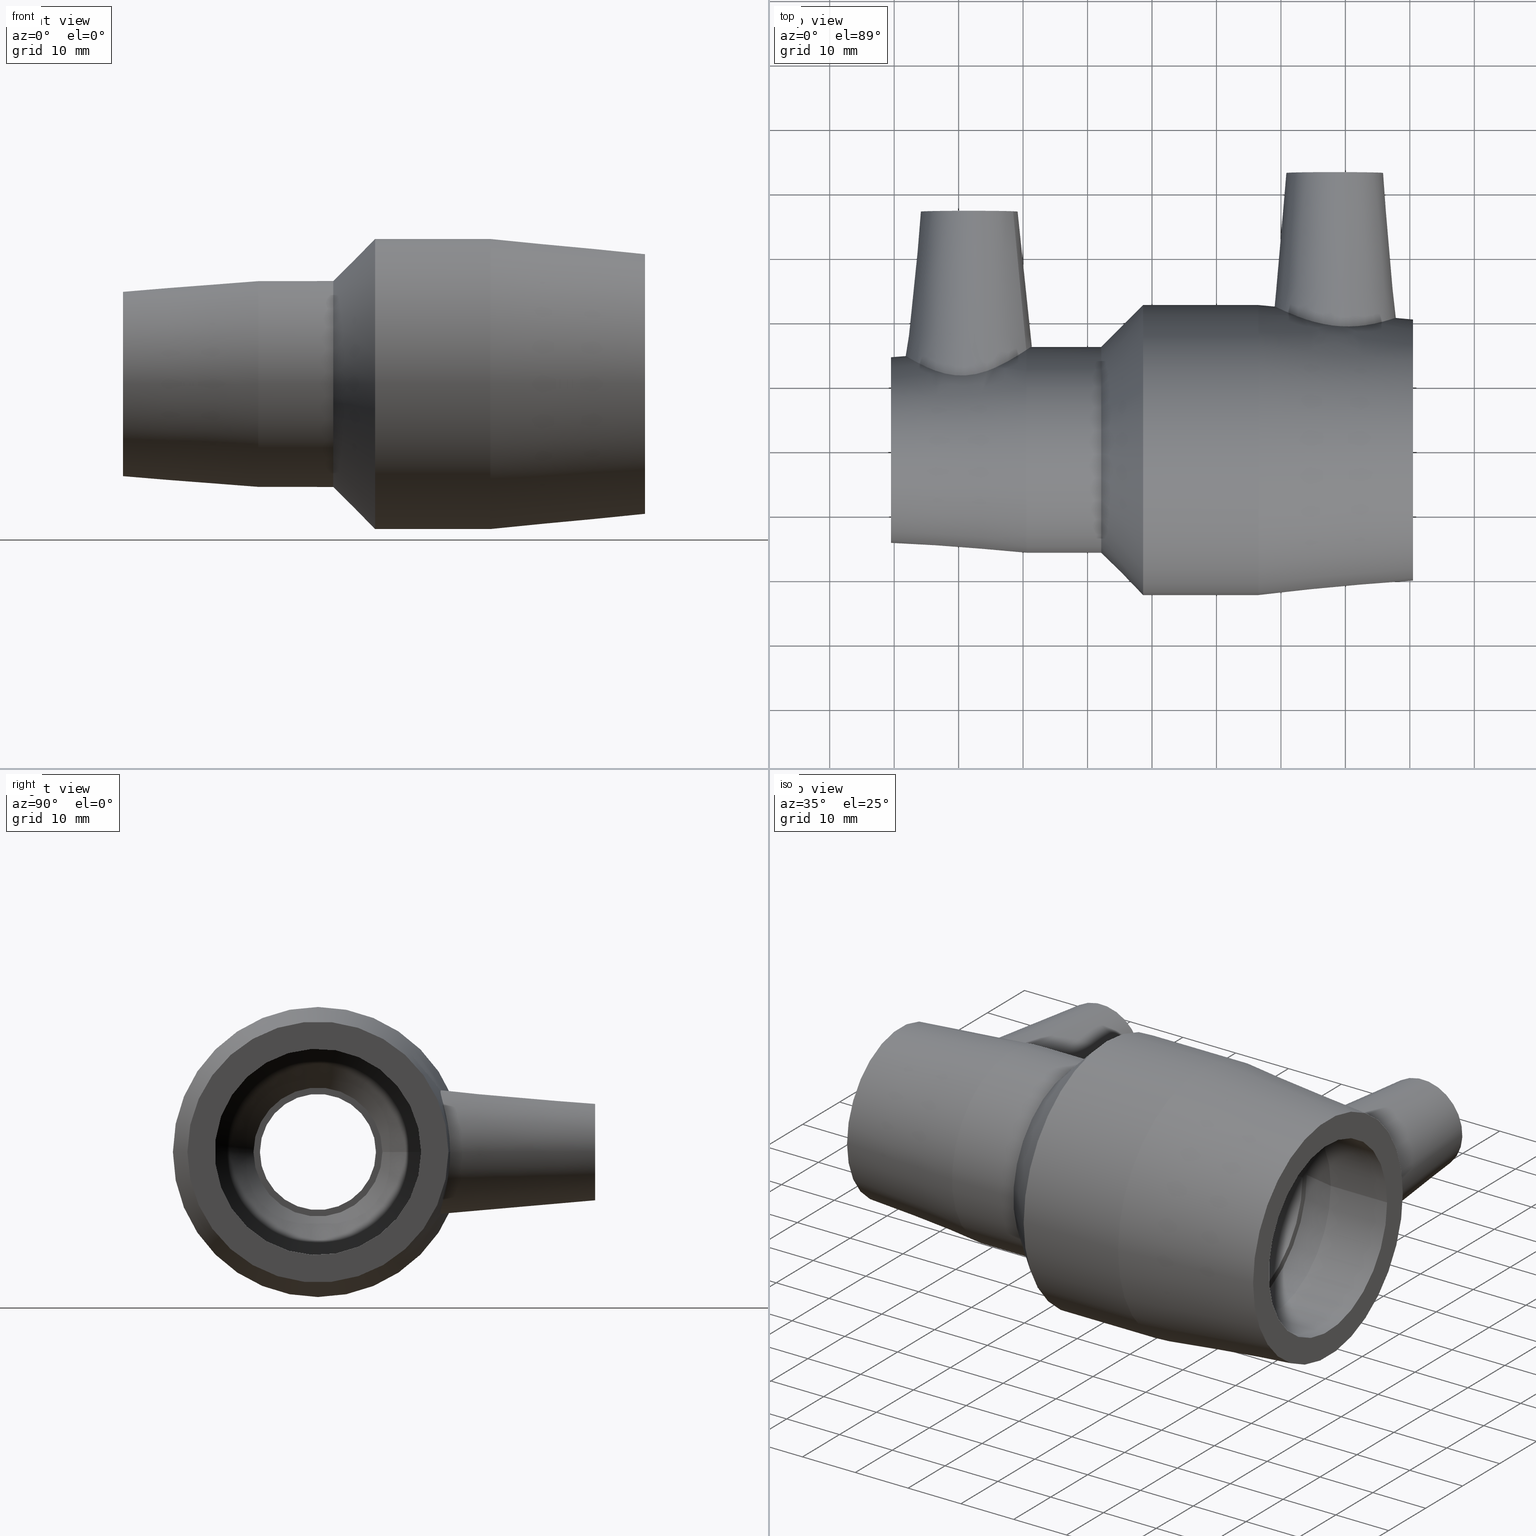
[diagram: canonical four-view strip — front | top / right | iso, engineering-drawing reading convention]
A machine part, canonical four-view strip (front | top / right | iso — engineering-drawing reading convention). The complete STEP part file that produces these views, byte-faithful:
ISO-10303-21;
HEADER;
/* Generated by software containing ST-Developer
 * from STEP Tools, Inc. (www.steptools.com) 
 */

FILE_DESCRIPTION(
/* description */ ('PLASSON REDUCING COUPLER 32-20'),
/* implementation_level */ '2;1');

FILE_NAME(
/* name */ 
'C:\\Dropbox\\KIMPROJECTS-Inventor\\99-16-3568-Processing\\ElectroFusi
on Fittings\\491104\\491104032020.ipt.stp',
/* time_stamp */ '2017-11-06T09:12:27+02:00',
/* author */ ('KIM'),
/* organization */ (''),
/* preprocessor_version */ 'ST-DEVELOPER v15.6',
/* originating_system */ 'Autodesk Inventor 2015',
/* authorisation */ '');

FILE_SCHEMA (('AUTOMOTIVE_DESIGN { 1 0 10303 214 3 1 1 }'));
ENDSEC;

DATA;
#10=MECHANICAL_DESIGN_GEOMETRIC_PRESENTATION_REPRESENTATION('',(#13),#743);
#11=SHAPE_REPRESENTATION_RELATIONSHIP('SRR','None',#752,#12);
#12=ADVANCED_BREP_SHAPE_REPRESENTATION($,(#14),#742);
#13=STYLED_ITEM('',(#761),#14);
#14=MANIFOLD_SOLID_BREP('Solid1',#371);
#15=B_SPLINE_CURVE_WITH_KNOTS('',3,(#582,#583,#584,#585,#586,#587,#588,
#589,#590,#591,#592,#593,#594,#595,#596,#597,#598,#599,#600,#601,#602,#603,
#604,#605,#606,#607,#608,#609,#610,#611,#612,#613,#614,#615),
 .UNSPECIFIED.,.T.,.F.,(4,2,2,2,2,2,2,2,2,2,2,2,2,2,2,2,4),(0.,0.34921942886864,
0.69843885773728,1.05091588637607,1.40339291501485,1.75586994365364,2.10834697229243,
2.45756640116107,2.80678583002971,3.18980122872234,3.57281662741497,3.9445500905456,
4.31628355367624,4.68801701680687,5.0597504799375,5.44276587863013,5.82578127732276),
 .UNSPECIFIED.);
#16=B_SPLINE_CURVE_WITH_KNOTS('',3,(#631,#632,#633,#634,#635,#636,#637,
#638,#639,#640),.UNSPECIFIED.,.F.,.F.,(4,2,2,2,4),(-1.22343570303803,-0.843723200450169,
-0.421861600225085,-0.210930800112543,0.),.UNSPECIFIED.);
#17=B_SPLINE_CURVE_WITH_KNOTS('',3,(#642,#643,#644,#645,#646,#647,#648,
#649,#650,#651),.UNSPECIFIED.,.F.,.F.,(4,2,2,2,4),(1.22343570308442,1.24116246177338,
1.6386017230966,2.03604098441981,2.05376774310879),.UNSPECIFIED.);
#18=B_SPLINE_CURVE_WITH_KNOTS('',3,(#652,#653,#654,#655,#656,#657,#658,
#659,#660,#661,#662,#663,#664,#665,#666,#667,#668,#669,#670,#671,#672,#673,
#674,#675,#676,#677,#678,#679,#680,#681),.UNSPECIFIED.,.F.,.F.,(4,2,2,2,
2,2,2,2,2,2,2,2,2,2,4),(0.,0.188159917955633,0.376319835911266,0.752639671822533,
1.12794190605186,1.50324414028119,1.87854637451053,2.25384860873986,2.63016844465112,
2.81832836260676,3.00648828056239,3.21741908067493,3.42834988078747,3.85021148101256,
4.22992398364678),.UNSPECIFIED.);
#19=CONICAL_SURFACE('',#385,7.5,5.);
#20=CONICAL_SURFACE('',#394,7.5,6.);
#21=CONICAL_SURFACE('',#395,49.6882914393351,4.35697500584629);
#22=CONICAL_SURFACE('',#400,19.25,45.);
#23=CONICAL_SURFACE('',#404,21.375,5.35582504285521);
#24=CONICAL_SURFACE('',#410,16.5668174977867,12.);
#25=CONICAL_SURFACE('',#416,13.,54.688786560367);
#26=CONICAL_SURFACE('',#428,10.4959653105634,12.);
#27=CONICAL_SURFACE('',#434,15.2,4.35697500584628);
#28=FACE_BOUND('',#104,.T.);
#29=FACE_BOUND('',#106,.T.);
#30=FACE_BOUND('',#108,.T.);
#31=FACE_BOUND('',#110,.T.);
#32=FACE_BOUND('',#112,.T.);
#33=FACE_BOUND('',#114,.T.);
#34=FACE_BOUND('',#116,.T.);
#35=FACE_BOUND('',#118,.T.);
#36=FACE_BOUND('',#120,.T.);
#37=FACE_BOUND('',#122,.T.);
#38=FACE_BOUND('',#125,.T.);
#39=FACE_BOUND('',#127,.T.);
#40=FACE_BOUND('',#129,.T.);
#41=FACE_BOUND('',#131,.T.);
#42=FACE_BOUND('',#132,.T.);
#43=FACE_BOUND('',#134,.T.);
#44=FACE_BOUND('',#136,.T.);
#45=FACE_BOUND('',#138,.T.);
#46=FACE_BOUND('',#140,.T.);
#47=FACE_BOUND('',#142,.T.);
#48=FACE_BOUND('',#144,.T.);
#49=FACE_BOUND('',#146,.T.);
#50=FACE_BOUND('',#148,.T.);
#51=FACE_BOUND('',#150,.T.);
#52=FACE_BOUND('',#152,.T.);
#53=FACE_BOUND('',#154,.T.);
#54=FACE_BOUND('',#156,.T.);
#55=FACE_BOUND('',#158,.T.);
#56=FACE_BOUND('',#160,.T.);
#57=FACE_BOUND('',#162,.T.);
#58=CYLINDRICAL_SURFACE('',#377,2.);
#59=CYLINDRICAL_SURFACE('',#379,5.);
#60=CYLINDRICAL_SURFACE('',#386,2.);
#61=CYLINDRICAL_SURFACE('',#388,5.);
#62=CYLINDRICAL_SURFACE('',#397,16.);
#63=CYLINDRICAL_SURFACE('',#402,22.5);
#64=CYLINDRICAL_SURFACE('',#408,16.);
#65=CYLINDRICAL_SURFACE('',#414,16.);
#66=CYLINDRICAL_SURFACE('',#420,8.99999999999999);
#67=CYLINDRICAL_SURFACE('',#424,10.);
#68=CYLINDRICAL_SURFACE('',#430,10.);
#69=FACE_OUTER_BOUND('',#101,.T.);
#70=FACE_OUTER_BOUND('',#102,.T.);
#71=FACE_OUTER_BOUND('',#103,.T.);
#72=FACE_OUTER_BOUND('',#105,.T.);
#73=FACE_OUTER_BOUND('',#107,.T.);
#74=FACE_OUTER_BOUND('',#109,.T.);
#75=FACE_OUTER_BOUND('',#111,.T.);
#76=FACE_OUTER_BOUND('',#113,.T.);
#77=FACE_OUTER_BOUND('',#115,.T.);
#78=FACE_OUTER_BOUND('',#117,.T.);
#79=FACE_OUTER_BOUND('',#119,.T.);
#80=FACE_OUTER_BOUND('',#121,.T.);
#81=FACE_OUTER_BOUND('',#123,.T.);
#82=FACE_OUTER_BOUND('',#124,.T.);
#83=FACE_OUTER_BOUND('',#126,.T.);
#84=FACE_OUTER_BOUND('',#128,.T.);
#85=FACE_OUTER_BOUND('',#130,.T.);
#86=FACE_OUTER_BOUND('',#133,.T.);
#87=FACE_OUTER_BOUND('',#135,.T.);
#88=FACE_OUTER_BOUND('',#137,.T.);
#89=FACE_OUTER_BOUND('',#139,.T.);
#90=FACE_OUTER_BOUND('',#141,.T.);
#91=FACE_OUTER_BOUND('',#143,.T.);
#92=FACE_OUTER_BOUND('',#145,.T.);
#93=FACE_OUTER_BOUND('',#147,.T.);
#94=FACE_OUTER_BOUND('',#149,.T.);
#95=FACE_OUTER_BOUND('',#151,.T.);
#96=FACE_OUTER_BOUND('',#153,.T.);
#97=FACE_OUTER_BOUND('',#155,.T.);
#98=FACE_OUTER_BOUND('',#157,.T.);
#99=FACE_OUTER_BOUND('',#159,.T.);
#100=FACE_OUTER_BOUND('',#161,.T.);
#101=EDGE_LOOP('',(#259));
#102=EDGE_LOOP('',(#260));
#103=EDGE_LOOP('',(#261));
#104=EDGE_LOOP('',(#262));
#105=EDGE_LOOP('',(#263));
#106=EDGE_LOOP('',(#264));
#107=EDGE_LOOP('',(#265));
#108=EDGE_LOOP('',(#266));
#109=EDGE_LOOP('',(#267));
#110=EDGE_LOOP('',(#268));
#111=EDGE_LOOP('',(#269));
#112=EDGE_LOOP('',(#270));
#113=EDGE_LOOP('',(#271));
#114=EDGE_LOOP('',(#272));
#115=EDGE_LOOP('',(#273));
#116=EDGE_LOOP('',(#274));
#117=EDGE_LOOP('',(#275));
#118=EDGE_LOOP('',(#276));
#119=EDGE_LOOP('',(#277));
#120=EDGE_LOOP('',(#278));
#121=EDGE_LOOP('',(#279));
#122=EDGE_LOOP('',(#280,#281,#282));
#123=EDGE_LOOP('',(#283,#284));
#124=EDGE_LOOP('',(#285));
#125=EDGE_LOOP('',(#286,#287));
#126=EDGE_LOOP('',(#288));
#127=EDGE_LOOP('',(#289));
#128=EDGE_LOOP('',(#290));
#129=EDGE_LOOP('',(#291));
#130=EDGE_LOOP('',(#292));
#131=EDGE_LOOP('',(#293));
#132=EDGE_LOOP('',(#294));
#133=EDGE_LOOP('',(#295));
#134=EDGE_LOOP('',(#296));
#135=EDGE_LOOP('',(#297));
#136=EDGE_LOOP('',(#298));
#137=EDGE_LOOP('',(#299));
#138=EDGE_LOOP('',(#300));
#139=EDGE_LOOP('',(#301));
#140=EDGE_LOOP('',(#302));
#141=EDGE_LOOP('',(#303));
#142=EDGE_LOOP('',(#304));
#143=EDGE_LOOP('',(#305));
#144=EDGE_LOOP('',(#306));
#145=EDGE_LOOP('',(#307));
#146=EDGE_LOOP('',(#308));
#147=EDGE_LOOP('',(#309));
#148=EDGE_LOOP('',(#310));
#149=EDGE_LOOP('',(#311));
#150=EDGE_LOOP('',(#312));
#151=EDGE_LOOP('',(#313));
#152=EDGE_LOOP('',(#314));
#153=EDGE_LOOP('',(#315));
#154=EDGE_LOOP('',(#316));
#155=EDGE_LOOP('',(#317));
#156=EDGE_LOOP('',(#318));
#157=EDGE_LOOP('',(#319));
#158=EDGE_LOOP('',(#320));
#159=EDGE_LOOP('',(#321));
#160=EDGE_LOOP('',(#322));
#161=EDGE_LOOP('',(#323,#324,#325));
#162=EDGE_LOOP('',(#326));
#163=CIRCLE('',#374,2.);
#164=CIRCLE('',#376,2.);
#165=CIRCLE('',#378,2.);
#166=CIRCLE('',#380,5.);
#167=CIRCLE('',#381,5.);
#168=CIRCLE('',#384,7.5);
#169=CIRCLE('',#387,2.);
#170=CIRCLE('',#389,5.);
#171=CIRCLE('',#390,5.);
#172=CIRCLE('',#393,7.5);
#173=CIRCLE('',#396,16.);
#174=CIRCLE('',#398,16.);
#175=CIRCLE('',#399,16.);
#176=CIRCLE('',#401,22.5);
#177=CIRCLE('',#403,22.5);
#178=CIRCLE('',#405,20.25);
#179=CIRCLE('',#407,16.);
#180=CIRCLE('',#409,16.);
#181=CIRCLE('',#411,17.1336349955734);
#182=CIRCLE('',#413,16.);
#183=CIRCLE('',#415,16.);
#184=CIRCLE('',#417,9.99999999999999);
#185=CIRCLE('',#419,8.99999999999999);
#186=CIRCLE('',#421,8.99999999999999);
#187=CIRCLE('',#423,9.99999999999999);
#188=CIRCLE('',#425,10.);
#189=CIRCLE('',#427,10.9919306211268);
#190=CIRCLE('',#429,10.);
#191=CIRCLE('',#431,10.);
#192=CIRCLE('',#433,14.4);
#193=VERTEX_POINT('',#563);
#194=VERTEX_POINT('',#566);
#195=VERTEX_POINT('',#569);
#196=VERTEX_POINT('',#572);
#197=VERTEX_POINT('',#574);
#198=VERTEX_POINT('',#578);
#199=VERTEX_POINT('',#581);
#200=VERTEX_POINT('',#617);
#201=VERTEX_POINT('',#620);
#202=VERTEX_POINT('',#622);
#203=VERTEX_POINT('',#626);
#204=VERTEX_POINT('',#629);
#205=VERTEX_POINT('',#630);
#206=VERTEX_POINT('',#641);
#207=VERTEX_POINT('',#685);
#208=VERTEX_POINT('',#689);
#209=VERTEX_POINT('',#692);
#210=VERTEX_POINT('',#695);
#211=VERTEX_POINT('',#698);
#212=VERTEX_POINT('',#701);
#213=VERTEX_POINT('',#704);
#214=VERTEX_POINT('',#707);
#215=VERTEX_POINT('',#710);
#216=VERTEX_POINT('',#713);
#217=VERTEX_POINT('',#716);
#218=VERTEX_POINT('',#719);
#219=VERTEX_POINT('',#722);
#220=VERTEX_POINT('',#725);
#221=VERTEX_POINT('',#728);
#222=VERTEX_POINT('',#731);
#223=VERTEX_POINT('',#734);
#224=VERTEX_POINT('',#737);
#225=EDGE_CURVE('',#193,#193,#163,.T.);
#226=EDGE_CURVE('',#194,#194,#164,.T.);
#227=EDGE_CURVE('',#195,#195,#165,.T.);
#228=EDGE_CURVE('',#196,#196,#166,.T.);
#229=EDGE_CURVE('',#197,#197,#167,.T.);
#230=EDGE_CURVE('',#198,#198,#168,.T.);
#231=EDGE_CURVE('',#199,#199,#15,.T.);
#232=EDGE_CURVE('',#200,#200,#169,.T.);
#233=EDGE_CURVE('',#201,#201,#170,.T.);
#234=EDGE_CURVE('',#202,#202,#171,.T.);
#235=EDGE_CURVE('',#203,#203,#172,.T.);
#236=EDGE_CURVE('',#204,#205,#16,.T.);
#237=EDGE_CURVE('',#204,#206,#17,.T.);
#238=EDGE_CURVE('',#205,#206,#18,.T.);
#239=EDGE_CURVE('',#206,#204,#173,.T.);
#240=EDGE_CURVE('',#207,#207,#174,.T.);
#241=EDGE_CURVE('',#204,#206,#175,.T.);
#242=EDGE_CURVE('',#208,#208,#176,.T.);
#243=EDGE_CURVE('',#209,#209,#177,.T.);
#244=EDGE_CURVE('',#210,#210,#178,.T.);
#245=EDGE_CURVE('',#211,#211,#179,.T.);
#246=EDGE_CURVE('',#212,#212,#180,.T.);
#247=EDGE_CURVE('',#213,#213,#181,.T.);
#248=EDGE_CURVE('',#214,#214,#182,.T.);
#249=EDGE_CURVE('',#215,#215,#183,.T.);
#250=EDGE_CURVE('',#216,#216,#184,.T.);
#251=EDGE_CURVE('',#217,#217,#185,.T.);
#252=EDGE_CURVE('',#218,#218,#186,.T.);
#253=EDGE_CURVE('',#219,#219,#187,.T.);
#254=EDGE_CURVE('',#220,#220,#188,.T.);
#255=EDGE_CURVE('',#221,#221,#189,.T.);
#256=EDGE_CURVE('',#222,#222,#190,.T.);
#257=EDGE_CURVE('',#223,#223,#191,.T.);
#258=EDGE_CURVE('',#224,#224,#192,.T.);
#259=ORIENTED_EDGE('',*,*,#225,.F.);
#260=ORIENTED_EDGE('',*,*,#226,.F.);
#261=ORIENTED_EDGE('',*,*,#225,.T.);
#262=ORIENTED_EDGE('',*,*,#227,.T.);
#263=ORIENTED_EDGE('',*,*,#228,.T.);
#264=ORIENTED_EDGE('',*,*,#229,.F.);
#265=ORIENTED_EDGE('',*,*,#228,.F.);
#266=ORIENTED_EDGE('',*,*,#227,.F.);
#267=ORIENTED_EDGE('',*,*,#230,.F.);
#268=ORIENTED_EDGE('',*,*,#229,.T.);
#269=ORIENTED_EDGE('',*,*,#230,.T.);
#270=ORIENTED_EDGE('',*,*,#231,.F.);
#271=ORIENTED_EDGE('',*,*,#226,.T.);
#272=ORIENTED_EDGE('',*,*,#232,.T.);
#273=ORIENTED_EDGE('',*,*,#233,.T.);
#274=ORIENTED_EDGE('',*,*,#234,.F.);
#275=ORIENTED_EDGE('',*,*,#233,.F.);
#276=ORIENTED_EDGE('',*,*,#232,.F.);
#277=ORIENTED_EDGE('',*,*,#235,.F.);
#278=ORIENTED_EDGE('',*,*,#234,.T.);
#279=ORIENTED_EDGE('',*,*,#235,.T.);
#280=ORIENTED_EDGE('',*,*,#236,.F.);
#281=ORIENTED_EDGE('',*,*,#237,.T.);
#282=ORIENTED_EDGE('',*,*,#238,.F.);
#283=ORIENTED_EDGE('',*,*,#239,.F.);
#284=ORIENTED_EDGE('',*,*,#237,.F.);
#285=ORIENTED_EDGE('',*,*,#240,.F.);
#286=ORIENTED_EDGE('',*,*,#239,.T.);
#287=ORIENTED_EDGE('',*,*,#241,.T.);
#288=ORIENTED_EDGE('',*,*,#242,.F.);
#289=ORIENTED_EDGE('',*,*,#240,.T.);
#290=ORIENTED_EDGE('',*,*,#243,.F.);
#291=ORIENTED_EDGE('',*,*,#242,.T.);
#292=ORIENTED_EDGE('',*,*,#244,.F.);
#293=ORIENTED_EDGE('',*,*,#231,.T.);
#294=ORIENTED_EDGE('',*,*,#243,.T.);
#295=ORIENTED_EDGE('',*,*,#244,.T.);
#296=ORIENTED_EDGE('',*,*,#245,.F.);
#297=ORIENTED_EDGE('',*,*,#246,.F.);
#298=ORIENTED_EDGE('',*,*,#245,.T.);
#299=ORIENTED_EDGE('',*,*,#247,.F.);
#300=ORIENTED_EDGE('',*,*,#246,.T.);
#301=ORIENTED_EDGE('',*,*,#247,.T.);
#302=ORIENTED_EDGE('',*,*,#248,.F.);
#303=ORIENTED_EDGE('',*,*,#249,.F.);
#304=ORIENTED_EDGE('',*,*,#248,.T.);
#305=ORIENTED_EDGE('',*,*,#250,.F.);
#306=ORIENTED_EDGE('',*,*,#249,.T.);
#307=ORIENTED_EDGE('',*,*,#250,.T.);
#308=ORIENTED_EDGE('',*,*,#251,.F.);
#309=ORIENTED_EDGE('',*,*,#252,.F.);
#310=ORIENTED_EDGE('',*,*,#251,.T.);
#311=ORIENTED_EDGE('',*,*,#253,.F.);
#312=ORIENTED_EDGE('',*,*,#252,.T.);
#313=ORIENTED_EDGE('',*,*,#254,.F.);
#314=ORIENTED_EDGE('',*,*,#253,.T.);
#315=ORIENTED_EDGE('',*,*,#255,.F.);
#316=ORIENTED_EDGE('',*,*,#254,.T.);
#317=ORIENTED_EDGE('',*,*,#256,.F.);
#318=ORIENTED_EDGE('',*,*,#255,.T.);
#319=ORIENTED_EDGE('',*,*,#257,.F.);
#320=ORIENTED_EDGE('',*,*,#256,.T.);
#321=ORIENTED_EDGE('',*,*,#258,.F.);
#322=ORIENTED_EDGE('',*,*,#257,.T.);
#323=ORIENTED_EDGE('',*,*,#238,.T.);
#324=ORIENTED_EDGE('',*,*,#241,.F.);
#325=ORIENTED_EDGE('',*,*,#236,.T.);
#326=ORIENTED_EDGE('',*,*,#258,.T.);
#327=PLANE('',#373);
#328=PLANE('',#375);
#329=PLANE('',#382);
#330=PLANE('',#383);
#331=PLANE('',#391);
#332=PLANE('',#392);
#333=PLANE('',#406);
#334=PLANE('',#412);
#335=PLANE('',#418);
#336=PLANE('',#422);
#337=PLANE('',#426);
#338=PLANE('',#432);
#339=ADVANCED_FACE('',(#69),#327,.T.);
#340=ADVANCED_FACE('',(#70),#328,.T.);
#341=ADVANCED_FACE('',(#71,#28),#58,.T.);
#342=ADVANCED_FACE('',(#72,#29),#59,.F.);
#343=ADVANCED_FACE('',(#73,#30),#329,.T.);
#344=ADVANCED_FACE('',(#74,#31),#330,.T.);
#345=ADVANCED_FACE('',(#75,#32),#19,.T.);
#346=ADVANCED_FACE('',(#76,#33),#60,.T.);
#347=ADVANCED_FACE('',(#77,#34),#61,.F.);
#348=ADVANCED_FACE('',(#78,#35),#331,.T.);
#349=ADVANCED_FACE('',(#79,#36),#332,.T.);
#350=ADVANCED_FACE('',(#80,#37),#20,.T.);
#351=ADVANCED_FACE('',(#81),#21,.F.);
#352=ADVANCED_FACE('',(#82,#38),#62,.T.);
#353=ADVANCED_FACE('',(#83,#39),#22,.T.);
#354=ADVANCED_FACE('',(#84,#40),#63,.T.);
#355=ADVANCED_FACE('',(#85,#41,#42),#23,.T.);
#356=ADVANCED_FACE('',(#86,#43),#333,.T.);
#357=ADVANCED_FACE('',(#87,#44),#64,.F.);
#358=ADVANCED_FACE('',(#88,#45),#24,.F.);
#359=ADVANCED_FACE('',(#89,#46),#334,.T.);
#360=ADVANCED_FACE('',(#90,#47),#65,.F.);
#361=ADVANCED_FACE('',(#91,#48),#25,.F.);
#362=ADVANCED_FACE('',(#92,#49),#335,.T.);
#363=ADVANCED_FACE('',(#93,#50),#66,.F.);
#364=ADVANCED_FACE('',(#94,#51),#336,.T.);
#365=ADVANCED_FACE('',(#95,#52),#67,.F.);
#366=ADVANCED_FACE('',(#96,#53),#337,.T.);
#367=ADVANCED_FACE('',(#97,#54),#26,.F.);
#368=ADVANCED_FACE('',(#98,#55),#68,.F.);
#369=ADVANCED_FACE('',(#99,#56),#338,.T.);
#370=ADVANCED_FACE('',(#100,#57),#27,.T.);
#371=CLOSED_SHELL('',(#339,#340,#341,#342,#343,#344,#345,#346,#347,#348,
#349,#350,#351,#352,#353,#354,#355,#356,#357,#358,#359,#360,#361,#362,#363,
#364,#365,#366,#367,#368,#369,#370));
#372=AXIS2_PLACEMENT_3D('placement',#561,#435,#436);
#373=AXIS2_PLACEMENT_3D('',#562,#437,#438);
#374=AXIS2_PLACEMENT_3D('',#564,#439,#440);
#375=AXIS2_PLACEMENT_3D('',#565,#441,#442);
#376=AXIS2_PLACEMENT_3D('',#567,#443,#444);
#377=AXIS2_PLACEMENT_3D('',#568,#445,#446);
#378=AXIS2_PLACEMENT_3D('',#570,#447,#448);
#379=AXIS2_PLACEMENT_3D('',#571,#449,#450);
#380=AXIS2_PLACEMENT_3D('',#573,#451,#452);
#381=AXIS2_PLACEMENT_3D('',#575,#453,#454);
#382=AXIS2_PLACEMENT_3D('',#576,#455,#456);
#383=AXIS2_PLACEMENT_3D('',#577,#457,#458);
#384=AXIS2_PLACEMENT_3D('',#579,#459,#460);
#385=AXIS2_PLACEMENT_3D('',#580,#461,#462);
#386=AXIS2_PLACEMENT_3D('',#616,#463,#464);
#387=AXIS2_PLACEMENT_3D('',#618,#465,#466);
#388=AXIS2_PLACEMENT_3D('',#619,#467,#468);
#389=AXIS2_PLACEMENT_3D('',#621,#469,#470);
#390=AXIS2_PLACEMENT_3D('',#623,#471,#472);
#391=AXIS2_PLACEMENT_3D('',#624,#473,#474);
#392=AXIS2_PLACEMENT_3D('',#625,#475,#476);
#393=AXIS2_PLACEMENT_3D('',#627,#477,#478);
#394=AXIS2_PLACEMENT_3D('',#628,#479,#480);
#395=AXIS2_PLACEMENT_3D('',#682,#481,#482);
#396=AXIS2_PLACEMENT_3D('',#683,#483,#484);
#397=AXIS2_PLACEMENT_3D('',#684,#485,#486);
#398=AXIS2_PLACEMENT_3D('',#686,#487,#488);
#399=AXIS2_PLACEMENT_3D('',#687,#489,#490);
#400=AXIS2_PLACEMENT_3D('',#688,#491,#492);
#401=AXIS2_PLACEMENT_3D('',#690,#493,#494);
#402=AXIS2_PLACEMENT_3D('',#691,#495,#496);
#403=AXIS2_PLACEMENT_3D('',#693,#497,#498);
#404=AXIS2_PLACEMENT_3D('',#694,#499,#500);
#405=AXIS2_PLACEMENT_3D('',#696,#501,#502);
#406=AXIS2_PLACEMENT_3D('',#697,#503,#504);
#407=AXIS2_PLACEMENT_3D('',#699,#505,#506);
#408=AXIS2_PLACEMENT_3D('',#700,#507,#508);
#409=AXIS2_PLACEMENT_3D('',#702,#509,#510);
#410=AXIS2_PLACEMENT_3D('',#703,#511,#512);
#411=AXIS2_PLACEMENT_3D('',#705,#513,#514);
#412=AXIS2_PLACEMENT_3D('',#706,#515,#516);
#413=AXIS2_PLACEMENT_3D('',#708,#517,#518);
#414=AXIS2_PLACEMENT_3D('',#709,#519,#520);
#415=AXIS2_PLACEMENT_3D('',#711,#521,#522);
#416=AXIS2_PLACEMENT_3D('',#712,#523,#524);
#417=AXIS2_PLACEMENT_3D('',#714,#525,#526);
#418=AXIS2_PLACEMENT_3D('',#715,#527,#528);
#419=AXIS2_PLACEMENT_3D('',#717,#529,#530);
#420=AXIS2_PLACEMENT_3D('',#718,#531,#532);
#421=AXIS2_PLACEMENT_3D('',#720,#533,#534);
#422=AXIS2_PLACEMENT_3D('',#721,#535,#536);
#423=AXIS2_PLACEMENT_3D('',#723,#537,#538);
#424=AXIS2_PLACEMENT_3D('',#724,#539,#540);
#425=AXIS2_PLACEMENT_3D('',#726,#541,#542);
#426=AXIS2_PLACEMENT_3D('',#727,#543,#544);
#427=AXIS2_PLACEMENT_3D('',#729,#545,#546);
#428=AXIS2_PLACEMENT_3D('',#730,#547,#548);
#429=AXIS2_PLACEMENT_3D('',#732,#549,#550);
#430=AXIS2_PLACEMENT_3D('',#733,#551,#552);
#431=AXIS2_PLACEMENT_3D('',#735,#553,#554);
#432=AXIS2_PLACEMENT_3D('',#736,#555,#556);
#433=AXIS2_PLACEMENT_3D('',#738,#557,#558);
#434=AXIS2_PLACEMENT_3D('',#739,#559,#560);
#435=DIRECTION('axis',(0.,0.,1.));
#436=DIRECTION('refdir',(1.,0.,0.));
#437=DIRECTION('center_axis',(0.,1.,0.));
#438=DIRECTION('ref_axis',(0.,0.,1.));
#439=DIRECTION('center_axis',(0.,-1.,0.));
#440=DIRECTION('ref_axis',(1.,0.,0.));
#441=DIRECTION('center_axis',(0.,1.,0.));
#442=DIRECTION('ref_axis',(0.,0.,1.));
#443=DIRECTION('center_axis',(0.,-1.,0.));
#444=DIRECTION('ref_axis',(-1.,0.,0.));
#445=DIRECTION('center_axis',(0.,-1.,0.));
#446=DIRECTION('ref_axis',(1.,0.,0.));
#447=DIRECTION('center_axis',(0.,1.,0.));
#448=DIRECTION('ref_axis',(1.,0.,0.));
#449=DIRECTION('center_axis',(0.,-1.,0.));
#450=DIRECTION('ref_axis',(1.,0.,0.));
#451=DIRECTION('center_axis',(0.,-1.,0.));
#452=DIRECTION('ref_axis',(1.,0.,0.));
#453=DIRECTION('center_axis',(0.,-1.,0.));
#454=DIRECTION('ref_axis',(1.,0.,0.));
#455=DIRECTION('center_axis',(0.,1.,0.));
#456=DIRECTION('ref_axis',(0.,0.,1.));
#457=DIRECTION('center_axis',(0.,1.,0.));
#458=DIRECTION('ref_axis',(0.,0.,1.));
#459=DIRECTION('center_axis',(0.,-1.,0.));
#460=DIRECTION('ref_axis',(1.,0.,0.));
#461=DIRECTION('center_axis',(0.,-1.,0.));
#462=DIRECTION('ref_axis',(1.,0.,0.));
#463=DIRECTION('center_axis',(0.,-1.,0.));
#464=DIRECTION('ref_axis',(-1.,0.,0.));
#465=DIRECTION('center_axis',(0.,1.,0.));
#466=DIRECTION('ref_axis',(-1.,0.,0.));
#467=DIRECTION('center_axis',(0.,-1.,0.));
#468=DIRECTION('ref_axis',(-1.,0.,0.));
#469=DIRECTION('center_axis',(0.,-1.,0.));
#470=DIRECTION('ref_axis',(-1.,0.,0.));
#471=DIRECTION('center_axis',(0.,-1.,0.));
#472=DIRECTION('ref_axis',(-1.,0.,0.));
#473=DIRECTION('center_axis',(0.,1.,0.));
#474=DIRECTION('ref_axis',(0.,0.,1.));
#475=DIRECTION('center_axis',(0.,1.,0.));
#476=DIRECTION('ref_axis',(0.,0.,1.));
#477=DIRECTION('center_axis',(0.,-1.,0.));
#478=DIRECTION('ref_axis',(1.,0.,0.));
#479=DIRECTION('center_axis',(0.,-1.,0.));
#480=DIRECTION('ref_axis',(1.,0.,0.));
#481=DIRECTION('center_axis',(1.,1.47098614156963E-16,0.));
#482=DIRECTION('ref_axis',(-1.47098614156963E-16,1.,0.));
#483=DIRECTION('center_axis',(1.,1.83697019872103E-16,0.));
#484=DIRECTION('ref_axis',(0.,0.,-1.));
#485=DIRECTION('center_axis',(1.,1.83697019872103E-16,0.));
#486=DIRECTION('ref_axis',(-1.47098614156963E-16,1.,0.));
#487=DIRECTION('center_axis',(1.,1.83697019872103E-16,0.));
#488=DIRECTION('ref_axis',(0.,0.,-1.));
#489=DIRECTION('center_axis',(1.,1.83697019872103E-16,0.));
#490=DIRECTION('ref_axis',(0.,0.,-1.));
#491=DIRECTION('center_axis',(1.,1.83697019872103E-16,0.));
#492=DIRECTION('ref_axis',(-1.47098614156963E-16,1.,0.));
#493=DIRECTION('center_axis',(1.,1.83697019872103E-16,0.));
#494=DIRECTION('ref_axis',(0.,0.,-1.));
#495=DIRECTION('center_axis',(1.,1.83697019872103E-16,0.));
#496=DIRECTION('ref_axis',(-1.47098614156963E-16,1.,0.));
#497=DIRECTION('center_axis',(1.,1.83697019872103E-16,0.));
#498=DIRECTION('ref_axis',(0.,0.,-1.));
#499=DIRECTION('center_axis',(-1.,-1.83697019872103E-16,0.));
#500=DIRECTION('ref_axis',(-1.47098614156963E-16,1.,0.));
#501=DIRECTION('center_axis',(1.,1.83697019872103E-16,0.));
#502=DIRECTION('ref_axis',(0.,0.,-1.));
#503=DIRECTION('center_axis',(1.,1.83697019872103E-16,0.));
#504=DIRECTION('ref_axis',(0.,0.,-1.));
#505=DIRECTION('center_axis',(1.,1.83697019872103E-16,0.));
#506=DIRECTION('ref_axis',(0.,0.,-1.));
#507=DIRECTION('center_axis',(1.,1.83697019872103E-16,0.));
#508=DIRECTION('ref_axis',(-1.47098614156963E-16,1.,0.));
#509=DIRECTION('center_axis',(1.,1.83697019872103E-16,0.));
#510=DIRECTION('ref_axis',(0.,0.,-1.));
#511=DIRECTION('center_axis',(-1.,-1.83697019872103E-16,0.));
#512=DIRECTION('ref_axis',(-1.47098614156963E-16,1.,0.));
#513=DIRECTION('center_axis',(1.,1.83697019872103E-16,0.));
#514=DIRECTION('ref_axis',(0.,0.,-1.));
#515=DIRECTION('center_axis',(1.,1.83697019872103E-16,0.));
#516=DIRECTION('ref_axis',(0.,0.,-1.));
#517=DIRECTION('center_axis',(1.,1.83697019872103E-16,0.));
#518=DIRECTION('ref_axis',(0.,0.,-1.));
#519=DIRECTION('center_axis',(1.,1.83697019872103E-16,0.));
#520=DIRECTION('ref_axis',(-1.47098614156963E-16,1.,0.));
#521=DIRECTION('center_axis',(1.,1.83697019872103E-16,0.));
#522=DIRECTION('ref_axis',(0.,0.,-1.));
#523=DIRECTION('center_axis',(1.,1.83697019872103E-16,0.));
#524=DIRECTION('ref_axis',(-1.47098614156963E-16,1.,0.));
#525=DIRECTION('center_axis',(1.,1.83697019872103E-16,0.));
#526=DIRECTION('ref_axis',(0.,0.,-1.));
#527=DIRECTION('center_axis',(1.,1.83697019872103E-16,0.));
#528=DIRECTION('ref_axis',(0.,0.,-1.));
#529=DIRECTION('center_axis',(1.,1.83697019872103E-16,0.));
#530=DIRECTION('ref_axis',(0.,0.,-1.));
#531=DIRECTION('center_axis',(1.,1.83697019872103E-16,0.));
#532=DIRECTION('ref_axis',(-1.47098614156963E-16,1.,0.));
#533=DIRECTION('center_axis',(1.,1.83697019872103E-16,0.));
#534=DIRECTION('ref_axis',(0.,0.,-1.));
#535=DIRECTION('center_axis',(-1.,-1.83697019872103E-16,0.));
#536=DIRECTION('ref_axis',(0.,0.,1.));
#537=DIRECTION('center_axis',(1.,1.83697019872103E-16,0.));
#538=DIRECTION('ref_axis',(0.,0.,-1.));
#539=DIRECTION('center_axis',(1.,1.83697019872103E-16,0.));
#540=DIRECTION('ref_axis',(-1.47098614156963E-16,1.,0.));
#541=DIRECTION('center_axis',(1.,1.83697019872103E-16,0.));
#542=DIRECTION('ref_axis',(0.,0.,-1.));
#543=DIRECTION('center_axis',(-1.,-1.83697019872103E-16,0.));
#544=DIRECTION('ref_axis',(0.,0.,1.));
#545=DIRECTION('center_axis',(1.,1.83697019872103E-16,0.));
#546=DIRECTION('ref_axis',(0.,0.,-1.));
#547=DIRECTION('center_axis',(1.,1.83697019872103E-16,0.));
#548=DIRECTION('ref_axis',(-1.47098614156963E-16,1.,0.));
#549=DIRECTION('center_axis',(1.,1.83697019872103E-16,0.));
#550=DIRECTION('ref_axis',(0.,0.,-1.));
#551=DIRECTION('center_axis',(1.,1.83697019872103E-16,0.));
#552=DIRECTION('ref_axis',(-1.47098614156963E-16,1.,0.));
#553=DIRECTION('center_axis',(1.,1.83697019872103E-16,0.));
#554=DIRECTION('ref_axis',(0.,0.,-1.));
#555=DIRECTION('center_axis',(-1.,-1.83697019872103E-16,0.));
#556=DIRECTION('ref_axis',(0.,0.,1.));
#557=DIRECTION('center_axis',(1.,1.83697019872103E-16,0.));
#558=DIRECTION('ref_axis',(0.,0.,-1.));
#559=DIRECTION('center_axis',(1.,1.83697019872103E-16,0.));
#560=DIRECTION('ref_axis',(-1.47098614156963E-16,1.,0.));
#561=CARTESIAN_POINT('',(0.,0.,0.));
#562=CARTESIAN_POINT('Origin',(28.35,40.,0.));
#563=CARTESIAN_POINT('',(30.35,40.,-2.44929359829471E-16));
#564=CARTESIAN_POINT('Origin',(28.35,40.,0.));
#565=CARTESIAN_POINT('Origin',(-28.35,34.,0.));
#566=CARTESIAN_POINT('',(-26.35,34.,-2.44929359829471E-16));
#567=CARTESIAN_POINT('Origin',(-28.35,34.,0.));
#568=CARTESIAN_POINT('Origin',(28.35,43.,0.));
#569=CARTESIAN_POINT('',(26.35,29.,2.44929359829471E-16));
#570=CARTESIAN_POINT('Origin',(28.35,29.,0.));
#571=CARTESIAN_POINT('Origin',(28.35,43.,0.));
#572=CARTESIAN_POINT('',(23.35,29.,6.12323399573677E-16));
#573=CARTESIAN_POINT('Origin',(28.35,29.,0.));
#574=CARTESIAN_POINT('',(23.35,43.,6.12323399573677E-16));
#575=CARTESIAN_POINT('Origin',(28.35,43.,0.));
#576=CARTESIAN_POINT('Origin',(28.35,29.,9.25185853854297E-17));
#577=CARTESIAN_POINT('Origin',(28.35,43.,1.2335811384724E-16));
#578=CARTESIAN_POINT('',(20.85,43.,9.18485099360515E-16));
#579=CARTESIAN_POINT('Origin',(28.35,43.,0.));
#580=CARTESIAN_POINT('Origin',(28.35,43.,0.));
#581=CARTESIAN_POINT('',(28.8235486545235,19.0732069146047,-9.58162829181871));
#582=CARTESIAN_POINT('Ctrl Pts',(28.8235486545235,19.0732069146047,-9.58162829181871));
#583=CARTESIAN_POINT('Ctrl Pts',(29.9825313738118,18.976115111369,-9.53285319212247));
#584=CARTESIAN_POINT('Ctrl Pts',(31.2063358528912,18.9967291644831,-9.24682536761442));
#585=CARTESIAN_POINT('Ctrl Pts',(33.4291365827659,19.2396148456838,-8.21323818325407));
#586=CARTESIAN_POINT('Ctrl Pts',(34.4294556444271,19.4531069172057,-7.46647970827992));
#587=CARTESIAN_POINT('Ctrl Pts',(36.0032297338311,19.864280257009,-5.7856949626841));
#588=CARTESIAN_POINT('Ctrl Pts',(36.6860853312904,20.0910025325791,-4.73022657038478));
#589=CARTESIAN_POINT('Ctrl Pts',(37.5939583517543,20.4117809913599,-2.42526711871709));
#590=CARTESIAN_POINT('Ctrl Pts',(37.8183722173292,20.5014026046254,-1.17492342879596));
#591=CARTESIAN_POINT('Ctrl Pts',(37.8183722173292,20.5014026046254,1.17492342879596));
#592=CARTESIAN_POINT('Ctrl Pts',(37.5939583517543,20.4117809913599,2.42526711871709));
#593=CARTESIAN_POINT('Ctrl Pts',(36.6860853312904,20.0910025325791,4.73022657038478));
#594=CARTESIAN_POINT('Ctrl Pts',(36.0032297338311,19.864280257009,5.7856949626841));
#595=CARTESIAN_POINT('Ctrl Pts',(34.4294556444271,19.4531069172057,7.46647970827992));
#596=CARTESIAN_POINT('Ctrl Pts',(33.4291365827659,19.2396148456838,8.21323818325407));
#597=CARTESIAN_POINT('Ctrl Pts',(31.2063358528912,18.9967291644831,9.24682536761442));
#598=CARTESIAN_POINT('Ctrl Pts',(29.9825313738118,18.976115111369,9.53285319212247));
#599=CARTESIAN_POINT('Ctrl Pts',(27.5524045210364,19.1796948492725,9.63512363804544));
#600=CARTESIAN_POINT('Ctrl Pts',(26.2221646987138,19.4374240495489,9.41229869964287));
#601=CARTESIAN_POINT('Ctrl Pts',(23.8023532209335,20.1235590168762,8.44355803872945));
#602=CARTESIAN_POINT('Ctrl Pts',(22.7099040736524,20.5427639567287,7.69833737638453));
#603=CARTESIAN_POINT('Ctrl Pts',(21.0092747943259,21.267998571969,5.9920861995273));
#604=CARTESIAN_POINT('Ctrl Pts',(20.2735656696187,21.6264979911721,4.92151343005924));
#605=CARTESIAN_POINT('Ctrl Pts',(19.2861986874747,22.1258780867772,2.54573329136532));
#606=CARTESIAN_POINT('Ctrl Pts',(19.0356845552626,22.2622795729441,1.23911154376878));
#607=CARTESIAN_POINT('Ctrl Pts',(19.0356845552626,22.2622795729441,-1.23911154376878));
#608=CARTESIAN_POINT('Ctrl Pts',(19.2861986874747,22.1258780867772,-2.54573329136531));
#609=CARTESIAN_POINT('Ctrl Pts',(20.2735656696187,21.6264979911721,-4.92151343005923));
#610=CARTESIAN_POINT('Ctrl Pts',(21.0092747943259,21.267998571969,-5.99208619952729));
#611=CARTESIAN_POINT('Ctrl Pts',(22.7099040736524,20.5427639567287,-7.69833737638453));
#612=CARTESIAN_POINT('Ctrl Pts',(23.8023532209335,20.1235590168762,-8.44355803872945));
#613=CARTESIAN_POINT('Ctrl Pts',(26.2221646987138,19.4374240495489,-9.41229869964287));
#614=CARTESIAN_POINT('Ctrl Pts',(27.5524045210364,19.1796948492725,-9.63512363804543));
#615=CARTESIAN_POINT('Ctrl Pts',(28.8235486545235,19.0732069146047,-9.5816282918187));
#616=CARTESIAN_POINT('Origin',(-28.35,37.,0.));
#617=CARTESIAN_POINT('',(-26.35,23.,-2.44929359829471E-16));
#618=CARTESIAN_POINT('Origin',(-28.35,23.,0.));
#619=CARTESIAN_POINT('Origin',(-28.35,37.,0.));
#620=CARTESIAN_POINT('',(-23.35,23.,-6.12323399573677E-16));
#621=CARTESIAN_POINT('Origin',(-28.35,23.,0.));
#622=CARTESIAN_POINT('',(-23.35,37.,-6.12323399573677E-16));
#623=CARTESIAN_POINT('Origin',(-28.35,37.,0.));
#624=CARTESIAN_POINT('Origin',(-28.35,23.,-9.25185853854297E-17));
#625=CARTESIAN_POINT('Origin',(-28.35,37.,1.2335811384724E-16));
#626=CARTESIAN_POINT('',(-35.85,37.,9.18485099360515E-16));
#627=CARTESIAN_POINT('Origin',(-28.35,37.,0.));
#628=CARTESIAN_POINT('Origin',(-28.35,37.,0.));
#629=CARTESIAN_POINT('',(-19.4999999999998,15.4591780700979,4.12478040591305));
#630=CARTESIAN_POINT('',(-28.9269667620914,11.4026718073472,10.1740409320028));
#631=CARTESIAN_POINT('Ctrl Pts',(-19.4999999999998,15.4591780700979,4.12478040591306));
#632=CARTESIAN_POINT('Ctrl Pts',(-20.0098529835228,15.1034823463556,5.3072017681473));
#633=CARTESIAN_POINT('Ctrl Pts',(-20.7372740026943,14.6098545976842,6.36294378411461));
#634=CARTESIAN_POINT('Ctrl Pts',(-22.4465365443782,13.5625099447371,8.12946959308703));
#635=CARTESIAN_POINT('Ctrl Pts',(-23.5799225428481,12.9207845195791,8.93015372018443));
#636=CARTESIAN_POINT('Ctrl Pts',(-25.4818672219328,12.1338903005604,9.72256680463307));
#637=CARTESIAN_POINT('Ctrl Pts',(-26.1500286169018,11.9022536521228,9.9207730130948));
#638=CARTESIAN_POINT('Ctrl Pts',(-27.5218954025901,11.5560608236013,10.1643956127504));
#639=CARTESIAN_POINT('Ctrl Pts',(-28.2258960044139,11.4425280115162,10.2096026546815));
#640=CARTESIAN_POINT('Ctrl Pts',(-28.9269667620915,11.4026718073472,10.1740409320028));
#641=CARTESIAN_POINT('',(-19.4999999999999,15.4591780700979,-4.12478040591319));
#642=CARTESIAN_POINT('Ctrl Pts',(-19.4999999999998,15.4591780700979,4.12478040591305));
#643=CARTESIAN_POINT('Ctrl Pts',(-19.4761976738578,15.4757836130631,4.06957943659305));
#644=CARTESIAN_POINT('Ctrl Pts',(-19.4528509178805,15.4921015724524,4.01411429737032));
#645=CARTESIAN_POINT('Ctrl Pts',(-18.9169299435985,15.8673124238578,2.70922177047032));
#646=CARTESIAN_POINT('Ctrl Pts',(-18.6496208461372,16.0647907926752,1.32479753774406));
#647=CARTESIAN_POINT('Ctrl Pts',(-18.6496208461372,16.0647907926752,-1.32479753774406));
#648=CARTESIAN_POINT('Ctrl Pts',(-18.9169299435985,15.8673124238578,-2.70922177047032));
#649=CARTESIAN_POINT('Ctrl Pts',(-19.4528509178805,15.4921015724524,-4.01411429737037));
#650=CARTESIAN_POINT('Ctrl Pts',(-19.4761976738579,15.4757836130631,-4.06957943659313));
#651=CARTESIAN_POINT('Ctrl Pts',(-19.4999999999999,15.4591780700979,-4.12478040591319));
#652=CARTESIAN_POINT('Ctrl Pts',(-28.9269667620915,11.4026718073472,10.1740409320028));
#653=CARTESIAN_POINT('Ctrl Pts',(-29.5523539325537,11.3671182509085,10.1423182494072));
#654=CARTESIAN_POINT('Ctrl Pts',(-30.1858643799534,11.3898936684929,10.0454002782201));
#655=CARTESIAN_POINT('Ctrl Pts',(-31.4234286964334,11.5447793256419,9.72126231207074));
#656=CARTESIAN_POINT('Ctrl Pts',(-32.0276192623952,11.6761527669948,9.49421261294803));
#657=CARTESIAN_POINT('Ctrl Pts',(-33.7415972050276,12.1702261085194,8.64643979542795));
#658=CARTESIAN_POINT('Ctrl Pts',(-34.7545334798056,12.6281368860016,7.85026384258532));
#659=CARTESIAN_POINT('Ctrl Pts',(-36.342584169182,13.4333826326405,6.08766972242978));
#660=CARTESIAN_POINT('Ctrl Pts',(-37.0371539985382,13.8448667400185,4.98894143604009));
#661=CARTESIAN_POINT('Ctrl Pts',(-37.9703068510572,14.41793872117,2.57154623052441));
#662=CARTESIAN_POINT('Ctrl Pts',(-38.2069934541885,14.5747052606333,1.2510074474311));
#663=CARTESIAN_POINT('Ctrl Pts',(-38.2069934541885,14.5747052606333,-1.2510074474311));
#664=CARTESIAN_POINT('Ctrl Pts',(-37.9703068510572,14.41793872117,-2.5715462305244));
#665=CARTESIAN_POINT('Ctrl Pts',(-37.0371539985382,13.8448667400185,-4.98894143604009));
#666=CARTESIAN_POINT('Ctrl Pts',(-36.342584169182,13.4333826326405,-6.08766972242978));
#667=CARTESIAN_POINT('Ctrl Pts',(-34.7545334798056,12.6281368860016,-7.85026384258532));
#668=CARTESIAN_POINT('Ctrl Pts',(-33.7415972050276,12.1702261085194,-8.64643979542795));
#669=CARTESIAN_POINT('Ctrl Pts',(-32.0276192623952,11.6761527669948,-9.49421261294803));
#670=CARTESIAN_POINT('Ctrl Pts',(-31.4234286964334,11.5447793256419,-9.72126231207073));
#671=CARTESIAN_POINT('Ctrl Pts',(-30.1858643799534,11.3898936684929,-10.0454002782201));
#672=CARTESIAN_POINT('Ctrl Pts',(-29.5523539325537,11.3671182509085,-10.1423182494072));
#673=CARTESIAN_POINT('Ctrl Pts',(-28.2258960044139,11.4425280115162,-10.2096026546815));
#674=CARTESIAN_POINT('Ctrl Pts',(-27.5218954025901,11.5560608236013,-10.1643956127504));
#675=CARTESIAN_POINT('Ctrl Pts',(-26.1500286169018,11.9022536521228,-9.92077301309481));
#676=CARTESIAN_POINT('Ctrl Pts',(-25.4818672219328,12.1338903005604,-9.72256680463306));
#677=CARTESIAN_POINT('Ctrl Pts',(-23.5799225428481,12.9207845195791,-8.93015372018442));
#678=CARTESIAN_POINT('Ctrl Pts',(-22.4465365443782,13.5625099447371,-8.12946959308703));
#679=CARTESIAN_POINT('Ctrl Pts',(-20.7372740025955,14.6098545977448,-6.36294378401244));
#680=CARTESIAN_POINT('Ctrl Pts',(-20.0098529847717,15.1034823454843,-5.30720177104357));
#681=CARTESIAN_POINT('Ctrl Pts',(-19.4999999999999,15.4591780700979,-4.12478040591319));
#682=CARTESIAN_POINT('Origin',(422.658825141275,6.85143045728578E-14,0.));
#683=CARTESIAN_POINT('Origin',(-19.5,3.85763741731416E-15,0.));
#684=CARTESIAN_POINT('Origin',(-13.6875,4.92537634532076E-15,0.));
#685=CARTESIAN_POINT('',(-7.875,16.,0.));
#686=CARTESIAN_POINT('Origin',(-7.87499999999999,5.99311527332736E-15,0.));
#687=CARTESIAN_POINT('Origin',(-19.5,3.85763741731416E-15,0.));
#688=CARTESIAN_POINT('Origin',(-4.62499999999999,6.59013058791169E-15,0.));
#689=CARTESIAN_POINT('',(-1.375,22.5,0.));
#690=CARTESIAN_POINT('Origin',(-1.375,7.18714590249603E-15,0.));
#691=CARTESIAN_POINT('Origin',(7.56249999999999,8.82893801760295E-15,0.));
#692=CARTESIAN_POINT('',(16.5,22.5,0.));
#693=CARTESIAN_POINT('Origin',(16.5,1.04707301327099E-14,0.));
#694=CARTESIAN_POINT('Origin',(28.5,1.26750943711751E-14,0.));
#695=CARTESIAN_POINT('',(40.5,20.25,0.));
#696=CARTESIAN_POINT('Origin',(40.5,1.48794586096403E-14,0.));
#697=CARTESIAN_POINT('Origin',(40.5,16.,0.));
#698=CARTESIAN_POINT('',(40.5,16.,0.));
#699=CARTESIAN_POINT('Origin',(40.5,1.48794586096403E-14,0.));
#700=CARTESIAN_POINT('Origin',(35.1666666666667,1.38997411703225E-14,0.));
#701=CARTESIAN_POINT('',(29.8333333333333,16.,0.));
#702=CARTESIAN_POINT('Origin',(29.8333333333333,1.29200237310046E-14,0.));
#703=CARTESIAN_POINT('Origin',(27.1666666666667,1.24301650113456E-14,0.));
#704=CARTESIAN_POINT('',(24.5,17.1336349955735,0.));
#705=CARTESIAN_POINT('Origin',(24.5,1.19403062916867E-14,0.));
#706=CARTESIAN_POINT('Origin',(24.5,16.,0.));
#707=CARTESIAN_POINT('',(24.5,16.,0.));
#708=CARTESIAN_POINT('Origin',(24.5,1.19403062916867E-14,0.));
#709=CARTESIAN_POINT('Origin',(12.5,9.73594205322145E-15,0.));
#710=CARTESIAN_POINT('',(0.49999999999998,16.,0.));
#711=CARTESIAN_POINT('Origin',(0.499999999999985,7.53157781475622E-15,0.));
#712=CARTESIAN_POINT('Origin',(-1.62500000000001,7.141221647528E-15,0.));
#713=CARTESIAN_POINT('',(-3.75,10.,0.));
#714=CARTESIAN_POINT('Origin',(-3.75,6.75086548029978E-15,0.));
#715=CARTESIAN_POINT('Origin',(-3.75,9.,0.));
#716=CARTESIAN_POINT('',(-3.75,9.,0.));
#717=CARTESIAN_POINT('Origin',(-3.75,6.75086548029978E-15,0.));
#718=CARTESIAN_POINT('Origin',(-4.625,6.59013058791169E-15,0.));
#719=CARTESIAN_POINT('',(-5.5,9.,0.));
#720=CARTESIAN_POINT('Origin',(-5.5,6.4293956955236E-15,0.));
#721=CARTESIAN_POINT('Origin',(-5.5,10.,0.));
#722=CARTESIAN_POINT('',(-5.5,10.,0.));
#723=CARTESIAN_POINT('Origin',(-5.5,6.4293956955236E-15,0.));
#724=CARTESIAN_POINT('Origin',(-16.,4.50057698686652E-15,0.));
#725=CARTESIAN_POINT('',(-26.5,10.,0.));
#726=CARTESIAN_POINT('Origin',(-26.5,2.57175827820944E-15,0.));
#727=CARTESIAN_POINT('Origin',(-26.5,10.9919306211268,0.));
#728=CARTESIAN_POINT('',(-26.5,10.9919306211268,0.));
#729=CARTESIAN_POINT('Origin',(-26.5,2.57175827820944E-15,0.));
#730=CARTESIAN_POINT('Origin',(-28.8333333333333,2.14313189850787E-15,0.));
#731=CARTESIAN_POINT('',(-31.1666666666667,10.,0.));
#732=CARTESIAN_POINT('Origin',(-31.1666666666667,1.71450551880629E-15,0.));
#733=CARTESIAN_POINT('Origin',(-35.8333333333333,8.57252759403147E-16,0.));
#734=CARTESIAN_POINT('',(-40.5,10.,0.));
#735=CARTESIAN_POINT('Origin',(-40.5,0.,0.));
#736=CARTESIAN_POINT('Origin',(-40.5,14.4,0.));
#737=CARTESIAN_POINT('',(-40.5,14.4,0.));
#738=CARTESIAN_POINT('Origin',(-40.5,0.,0.));
#739=CARTESIAN_POINT('Origin',(-30.,1.92881870865708E-15,0.));
#740=UNCERTAINTY_MEASURE_WITH_UNIT(LENGTH_MEASURE(0.01),#744,
'DISTANCE_ACCURACY_VALUE',
'Maximum model space distance between geometric entities at asserted c
onnectivities');
#741=UNCERTAINTY_MEASURE_WITH_UNIT(LENGTH_MEASURE(1.E-6),#744,
'DISTANCE_ACCURACY_VALUE',
'Maximum model space distance between geometric entities at asserted c
onnectivities');
#742=(
GEOMETRIC_REPRESENTATION_CONTEXT(3)
GLOBAL_UNCERTAINTY_ASSIGNED_CONTEXT((#740))
GLOBAL_UNIT_ASSIGNED_CONTEXT((#744,#747,#745))
REPRESENTATION_CONTEXT('','3D')
);
#743=(
GEOMETRIC_REPRESENTATION_CONTEXT(3)
GLOBAL_UNCERTAINTY_ASSIGNED_CONTEXT((#741))
GLOBAL_UNIT_ASSIGNED_CONTEXT((#744,#747,#745))
REPRESENTATION_CONTEXT('','3D')
);
#744=(
LENGTH_UNIT()
NAMED_UNIT(*)
SI_UNIT(.MILLI.,.METRE.)
);
#745=(
NAMED_UNIT(*)
SI_UNIT($,.STERADIAN.)
SOLID_ANGLE_UNIT()
);
#746=DIMENSIONAL_EXPONENTS(0.,0.,0.,0.,0.,0.,0.);
#747=(
CONVERSION_BASED_UNIT('degree',#749)
NAMED_UNIT(#746)
PLANE_ANGLE_UNIT()
);
#748=(
NAMED_UNIT(*)
PLANE_ANGLE_UNIT()
SI_UNIT($,.RADIAN.)
);
#749=PLANE_ANGLE_MEASURE_WITH_UNIT(PLANE_ANGLE_MEASURE(0.01745329252),#748);
#750=SHAPE_DEFINITION_REPRESENTATION(#751,#752);
#751=PRODUCT_DEFINITION_SHAPE('',$,#754);
#752=SHAPE_REPRESENTATION('',(#372),#742);
#753=PRODUCT_DEFINITION_CONTEXT('part definition',#758,'design');
#754=PRODUCT_DEFINITION('491104032020','491104032020',#755,#753);
#755=PRODUCT_DEFINITION_FORMATION('',$,#760);
#756=PRODUCT_RELATED_PRODUCT_CATEGORY('491104032020','491104032020',(#760));
#757=APPLICATION_PROTOCOL_DEFINITION('international standard',
'automotive_design',2009,#758);
#758=APPLICATION_CONTEXT(
'Core Data for Automotive Mechanical Design Process');
#759=PRODUCT_CONTEXT('part definition',#758,'mechanical');
#760=PRODUCT('491104032020','491104032020',$,(#759));
#761=PRESENTATION_STYLE_ASSIGNMENT((#762));
#762=SURFACE_STYLE_USAGE(.BOTH.,#763);
#763=SURFACE_SIDE_STYLE($,(#764));
#764=SURFACE_STYLE_FILL_AREA(#765);
#765=FILL_AREA_STYLE($,(#766));
#766=FILL_AREA_STYLE_COLOUR($,#767);
#767=COLOUR_RGB('',0.749019607843137,0.749019607843137,0.749019607843137);
ENDSEC;
END-ISO-10303-21;
